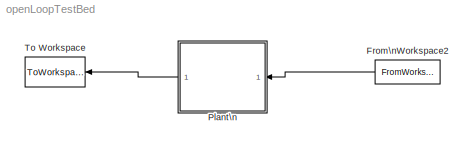
MODEL openLoopTestBed
KIND model
BLOCK [FromWorkspace] From\nWorkspace2
  SID = 32
  SampleTime = Ts
  VariableName = u
  ZeroCross = on
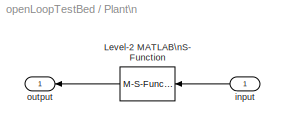
BLOCK [SubSystem] Plant\n
  Ports = [1, 1]
  RequestExecContextInheritance = off
  SID = 48
BLOCK [M-S-Function] Plant\n/Level-2 MATLAB\nS-Function
  FunctionName = virtualPlant
  Ports = [1, 1]
  SID = 4
BLOCK [Inport] Plant\n/input
  IconDisplay = Port number
  SID = 49
BLOCK [Outport] Plant\n/output
  IconDisplay = Port number
  SID = 50
BLOCK [ToWorkspace] To Workspace
  FixptAsFi = on
  MaxDataPoints = inf
  Ports = [1]
  SID = 5
  SampleTime = Ts
  SaveFormat = Structure With Time
  VariableName = y
LINE From\nWorkspace2:1 -> Plant\n:1
LINE Plant\n/Level-2 MATLAB\nS-Function:1 -> Plant\n/output:1
LINE Plant\n/input:1 -> Plant\n/Level-2 MATLAB\nS-Function:1
LINE Plant\n:1 -> To Workspace:1
